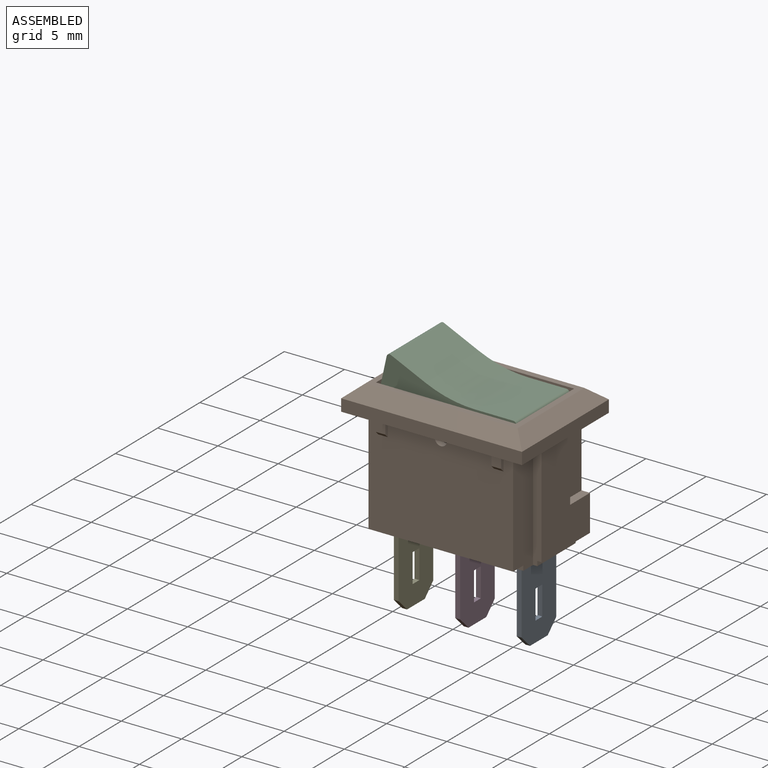
[diagram: assembled view]
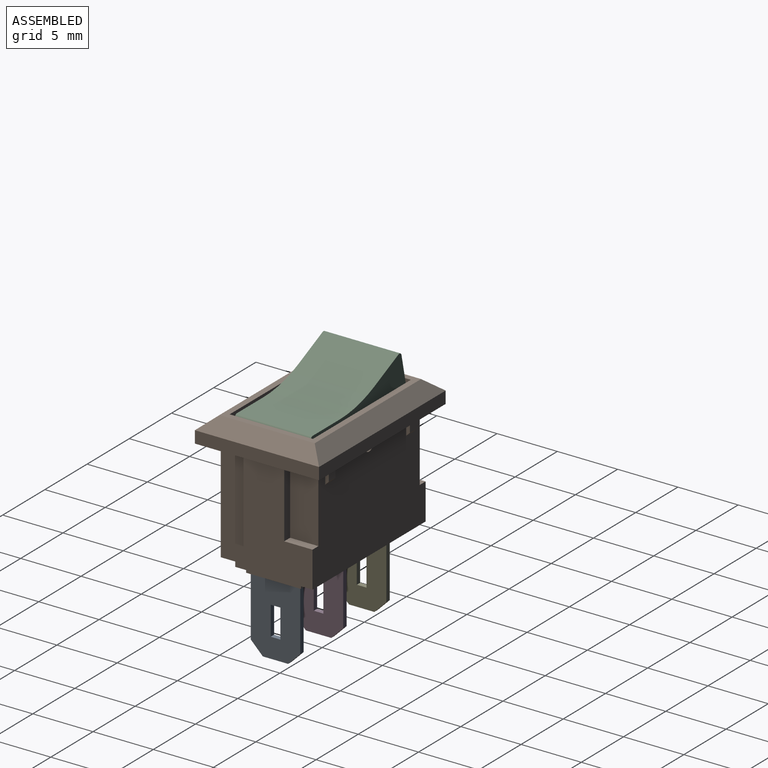
[diagram: assembled view, second angle]
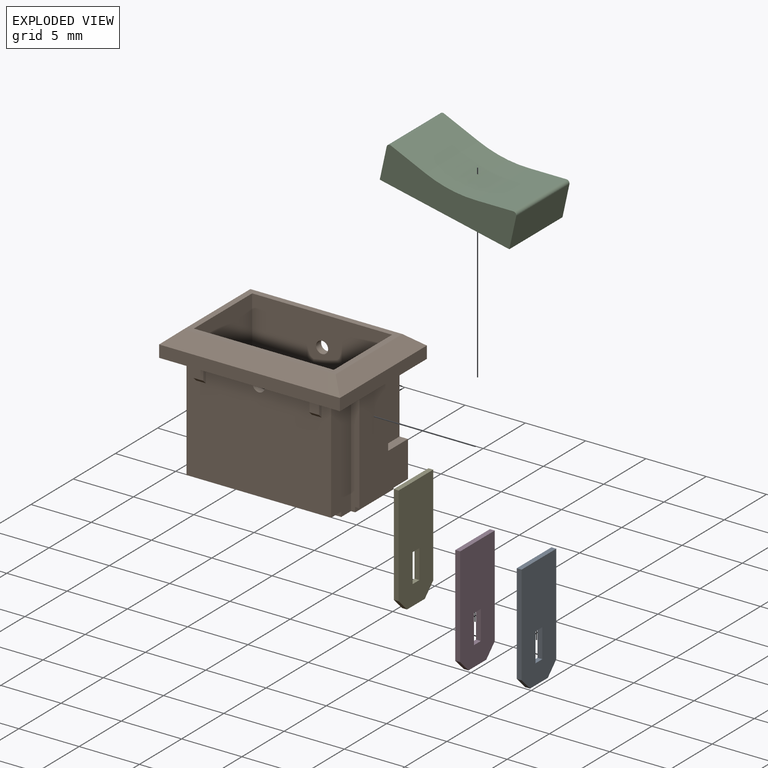
[diagram: exploded view]
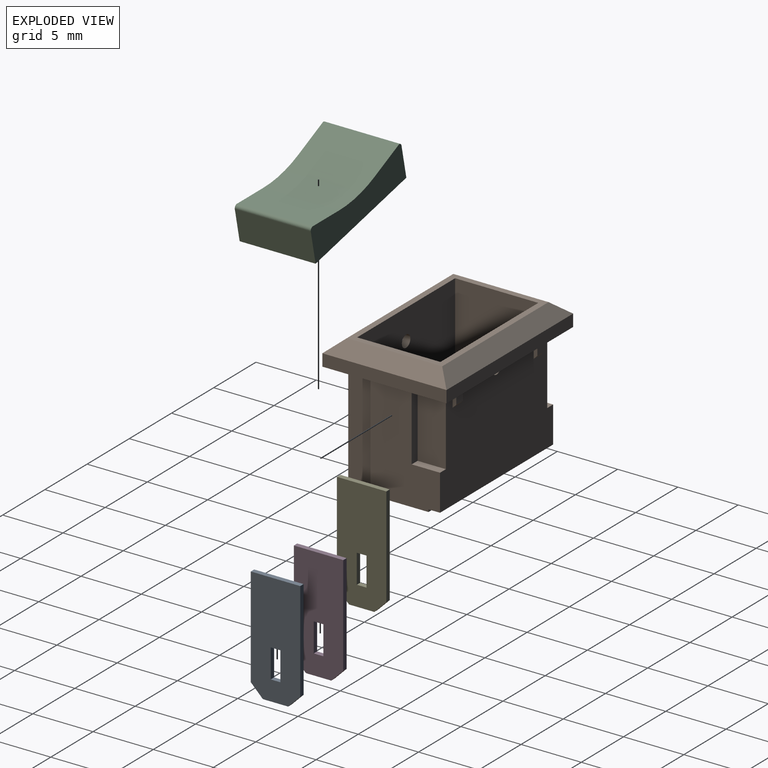
[diagram: exploded view, second angle]
ASSEMBLY  parts=5 mates=4
PART A: 12 faces, bbox 4.1x0.4x9.3 mm
  f0: plane 2.4x0.4mm, normal (1,0,0), area 1mm2, adj f1,f7,f8,f9
  f1: plane 0.8x0.4mm, normal (0,0,-1), area 0.3mm2, adj f0,f2,f8,f9
  f2: plane 2.4x0.4mm, normal (-1,0,0), area 1mm2, adj f1,f7,f8,f9
  f3: plane 8.3x0.4mm, normal (-1,0,0), area 3.3mm2, adj f6,f8,f9,f11
  f4: plane 2.1x0.4mm, normal (0,0,-1), area 0.8mm2, adj f8,f9,f10,f11
  f5: plane 8.3x0.4mm, normal (1,0,0), area 3.3mm2, adj f6,f8,f9,f10
  f6: plane 4.1x0.4mm, normal (0,0,1), area 1.6mm2, adj f3,f5,f8,f9
  f7: plane 0.8x0.4mm, normal (0,0,1), area 0.3mm2, adj f0,f2,f8,f9
  f8: plane 9.3x4.1mm, normal (0,-1,0), area 35.2mm2, adj f0,f1,f2,f3,f4,f5,f6,f7
  f9: plane 9.3x4.1mm, normal (0,1,0), area 35.2mm2, adj f0,f1,f2,f3,f4,f5,f6,f7
  f10: plane 1x1mm, normal (0.71,0,-0.71), area 0.6mm2, adj f4,f5,f8,f9
  f11: plane 1x1mm, normal (-0.71,0,-0.71), area 0.6mm2, adj f3,f4,f8,f9
PART B: 78 faces, bbox 15x10.3x11.2 mm
  f0: plane 15x10.3mm, normal (0,0,-1), area 51.6mm2, adj f1,f4,f5,f6,f7,f8,f10,f11
  f1: plane 13.4x8.8mm, normal (0,1,0), area 106.6mm2, adj f0,f3,f4,f6,f9,f12,f14,f16
  f2: plane 12.6x7.9mm, normal (0,0,1), area 19.5mm2, adj f51,f52,f53,f54,f56,f57,f58,f59
  f3: plane 13.4x8.1mm, normal (0,0,-1), area 63.3mm2, adj f1,f5,f7,f8,f10,f12,f13,f16
  f4: plane 5.8x2.35mm, normal (1,0,0), area 13.6mm2, adj f0,f1,f14,f15
  f5: plane 9.2x2.35mm, normal (1,0,0), area 21.1mm2, adj f0,f3,f8,f13,f37,f41
  f6: plane 5.8x2.35mm, normal (-1,0,0), area 13.6mm2, adj f0,f1,f9,f11
  f7: plane 9.2x2.35mm, normal (-1,0,0), area 21.1mm2, adj f0,f3,f8,f10,f27,f31
  f8: plane 12x8.8mm, normal (0,-1,0), area 102.4mm2, adj f0,f3,f5,f7,f60,f62,f63,f65
  f9: plane 2.35x0.7mm, normal (0,0,1), area 1.6mm2, adj f1,f6,f11,f12
  f10: plane 9.2x0.7mm, normal (0,-1,0), area 6.3mm2, adj f0,f3,f7,f12,f28,f31
  f11: plane 5.8x0.7mm, normal (0,1,0), area 4.1mm2, adj f0,f6,f9,f12
  f12: plane 8.8x5.75mm, normal (-1,0,0), area 37mm2, adj f0,f1,f3,f9,f10,f11
  f13: plane 9.2x0.7mm, normal (0,-1,0), area 6.3mm2, adj f0,f3,f5,f16,f40,f41
  f14: plane 2.35x0.7mm, normal (0,0,1), area 1.6mm2, adj f1,f4,f15,f16
  f15: plane 5.8x0.7mm, normal (0,1,0), area 4.1mm2, adj f0,f4,f14,f16
  f16: plane 8.8x5.75mm, normal (1,0,0), area 37mm2, adj f0,f1,f3,f13,f14,f15
  f17: plane 2.5x0.4mm, normal (0,-1,0), area 1mm2, adj f3,f18,f20,f21
  f18: plane 5.7x0.4mm, normal (-1,0,0), area 2.3mm2, adj f3,f17,f19,f21
  f19: plane 2.5x0.4mm, normal (0,1,0), area 1mm2, adj f3,f18,f20,f21
  f20: plane 5.7x0.4mm, normal (1,0,0), area 2.3mm2, adj f3,f17,f19,f21
  f21: plane 5.7x2.5mm, normal (0,0,-1), area 12.6mm2, adj f17,f18,f19,f20,f23,f24,f25,f26
  f22: plane 4.1x0.4mm, normal (0,0,-1), area 1.6mm2, adj f23,f24,f25,f26
  f23: plane 4.1x2.8mm, normal (1,0,0), area 11.5mm2, adj f21,f22,f24,f26
  f24: plane 2.8x0.4mm, normal (0,-1,0), area 1.1mm2, adj f21,f22,f23,f25
  f25: plane 4.1x2.8mm, normal (-1,0,0), area 11.5mm2, adj f21,f22,f24,f26
  f26: plane 2.8x0.4mm, normal (0,1,0), area 1.1mm2, adj f21,f22,f23,f25
  f27: plane 2.15x0.4mm, normal (0,-1,0), area 0.9mm2, adj f3,f7,f30,f31
  f28: plane 4.55x0.4mm, normal (-1,0,0), area 1.8mm2, adj f3,f10,f29,f31
  f29: plane 2.5x0.4mm, normal (0,1,0), area 1mm2, adj f3,f28,f30,f31
  f30: plane 5.7x0.4mm, normal (1,0,0), area 2.3mm2, adj f3,f27,f29,f31
  f31: plane 5.7x2.5mm, normal (0,0,-1), area 12.2mm2, adj f7,f10,f27,f28,f29,f30,f33,f34
  f32: plane 4.1x0.4mm, normal (0,0,-1), area 1.6mm2, adj f33,f34,f35,f36
  f33: plane 4.1x2.8mm, normal (1,0,0), area 11.5mm2, adj f31,f32,f34,f36
  f34: plane 2.8x0.4mm, normal (0,-1,0), area 1.1mm2, adj f31,f32,f33,f35
  f35: plane 4.1x2.8mm, normal (-1,0,0), area 11.5mm2, adj f31,f32,f34,f36
  f36: plane 2.8x0.4mm, normal (0,1,0), area 1.1mm2, adj f31,f32,f33,f35
  f37: plane 2.15x0.4mm, normal (0,-1,0), area 0.9mm2, adj f3,f5,f38,f41
  f38: plane 5.7x0.4mm, normal (-1,0,0), area 2.3mm2, adj f3,f37,f39,f41
  f39: plane 2.5x0.4mm, normal (0,1,0), area 1mm2, adj f3,f38,f40,f41
  f40: plane 4.55x0.4mm, normal (1,0,0), area 1.8mm2, adj f3,f13,f39,f41
  f41: plane 5.7x2.5mm, normal (0,0,-1), area 12.2mm2, adj f5,f13,f37,f38,f39,f40,f43,f44
  f42: plane 4.1x0.4mm, normal (0,0,-1), area 1.6mm2, adj f43,f44,f45,f46
  f43: plane 4.1x2.8mm, normal (1,0,0), area 11.5mm2, adj f41,f42,f44,f46
  f44: plane 2.8x0.4mm, normal (0,-1,0), area 1.1mm2, adj f41,f42,f43,f45
  f45: plane 4.1x2.8mm, normal (-1,0,0), area 11.5mm2, adj f41,f42,f44,f46
  f46: plane 2.8x0.4mm, normal (0,1,0), area 1.1mm2, adj f41,f42,f43,f45
  f47: plane 15x1mm, normal (0,1,0), area 15mm2, adj f0,f48,f50,f56
  f48: plane 10.3x1mm, normal (-1,0,0), area 10.3mm2, adj f0,f47,f49,f57
  f49: plane 15x1mm, normal (0,-1,0), area 15mm2, adj f0,f48,f50,f59
  f50: plane 10.3x1mm, normal (1,0,0), area 10.3mm2, adj f0,f47,f49,f58
  f51: plane 11.6x8mm, normal (0,-1,0), area 92mm2, adj f2,f52,f54,f55,f61
  f52: plane 8x6.9mm, normal (1,0,0), area 55.2mm2, adj f2,f51,f53,f55
  f53: plane 11.6x8mm, normal (0,1,0), area 92mm2, adj f2,f52,f54,f55,f60
  f54: plane 8x6.9mm, normal (-1,0,0), area 55.2mm2, adj f2,f51,f53,f55
  f55: plane 11.6x6.9mm, normal (0,0,1), area 80mm2, adj f51,f52,f53,f54
  f56: plane 15x1.2mm, normal (0,0.64,0.77), area 21.6mm2, adj f2,f47,f57,f58
  f57: plane 10.3x1.2mm, normal (-0.64,0,0.77), area 14.2mm2, adj f2,f48,f56,f59
  f58: plane 10.3x1.2mm, normal (0.64,0,0.77), area 14.2mm2, adj f2,f50,f56,f59
  f59: plane 15x1.2mm, normal (0,-0.64,0.77), area 21.6mm2, adj f2,f49,f57,f58
  f60: cylinder r=0.5mm len=1mm, axis (0,-1,0), area 1.9mm2, adj f8,f53
  f61: cylinder r=0.5mm len=1mm, axis (0,-1,0), area 1.9mm2, adj f1,f51
  f62: plane 1.5x0.3mm, normal (-1,0,0), area 0.4mm2, adj f0,f8,f64,f74
  f63: plane 1.5x0.3mm, normal (1,0,0), area 0.4mm2, adj f0,f8,f64,f74
  f64: plane 1.2x0.8mm, normal (0,-1,0), area 1mm2, adj f0,f62,f63,f74
  f65: plane 1.5x0.3mm, normal (-1,0,0), area 0.4mm2, adj f0,f8,f67,f75
  f66: plane 1.5x0.3mm, normal (1,0,0), area 0.4mm2, adj f0,f8,f67,f75
  f67: plane 1.2x0.8mm, normal (0,-1,0), area 1mm2, adj f0,f65,f66,f75
  f68: plane 1.5x0.3mm, normal (1,0,0), area 0.4mm2, adj f0,f1,f70,f77
  f69: plane 1.5x0.3mm, normal (-1,0,0), area 0.4mm2, adj f0,f1,f70,f77
  f70: plane 1.2x0.8mm, normal (0,1,0), area 1mm2, adj f0,f68,f69,f77
  f71: plane 1.5x0.3mm, normal (1,0,0), area 0.4mm2, adj f0,f1,f73,f76
  f72: plane 1.5x0.3mm, normal (-1,0,0), area 0.4mm2, adj f0,f1,f73,f76
  f73: plane 1.2x0.8mm, normal (0,1,0), area 1mm2, adj f0,f71,f72,f76
  f74: plane 0.8x0.3mm, normal (0,-0.71,-0.71), area 0.3mm2, adj f8,f62,f63,f64
  f75: plane 0.8x0.3mm, normal (0,-0.71,-0.71), area 0.3mm2, adj f8,f65,f66,f67
  f76: plane 0.8x0.3mm, normal (0,0.71,-0.71), area 0.3mm2, adj f1,f71,f72,f73
  f77: plane 0.8x0.3mm, normal (0,0.71,-0.71), area 0.3mm2, adj f1,f68,f69,f70
PART C: 10 faces, bbox 11x6.3x2.9 mm
  f0: plane 11x2.94mm, normal (0,1,0), area 26.7mm2, adj f2,f3,f4,f5,f6,f7,f8,f9
  f1: plane 11x2.94mm, normal (0,-1,0), area 26.7mm2, adj f2,f3,f4,f5,f6,f7,f8,f9
  f2: plane 6.3x2.69mm, normal (-1,0,0), area 16.9mm2, adj f0,f1,f4,f8
  f3: plane 6.3x2.69mm, normal (1,0,0), area 16.9mm2, adj f0,f1,f4,f9
  f4: plane 11x6.3mm, normal (0,0,-1), area 69.3mm2, adj f0,f1,f2,f3
  f5: plane 6.3x3.07mm, normal (0.21,0,0.98), area 19.8mm2, adj f0,f1,f7,f8
  f6: plane 6.3x3.07mm, normal (-0.21,0,0.98), area 19.8mm2, adj f0,f1,f7,f9
  f7: cylinder r=10mm len=6.3mm, axis (0,1,0), area 27.1mm2, adj f0,f1,f5,f6
  f8: cylinder r=0.25mm len=6.3mm, axis (0,-1,0), area 2.8mm2, adj f0,f1,f2,f5
  f9: cylinder r=0.25mm len=6.3mm, axis (0,1,0), area 2.8mm2, adj f0,f1,f3,f6
PART D: same geometry as A
PART E: same geometry as A
PLACE A rot(axis=(0,0,1),90deg) t=(10.9,2,-6.9)mm
PLACE B at identity
PLACE C rot(axis=(0,1,0),12.3deg) t=(0.01,0.6,10.28)mm
PLACE D rot(axis=(0,0,1),90deg) t=(5.8,2,-6.9)mm
PLACE E rot(axis=(0,0,1),90deg) t=(0.7,2,-6.9)mm
MATE fastened C.f6 <-> B.f2  axis (0,0,1) through (11.38,0.9,10.8)mm
MATE fastened E.f6 <-> B.f32  axis (0,0,1) through (0.7,2,2.4)mm
MATE fastened D.f6 <-> B.f22  axis (0,0,1) through (5.8,6.1,2.4)mm
MATE fastened A.f6 <-> B.f42  axis (0,0,1) through (10.9,6.1,2.4)mm
